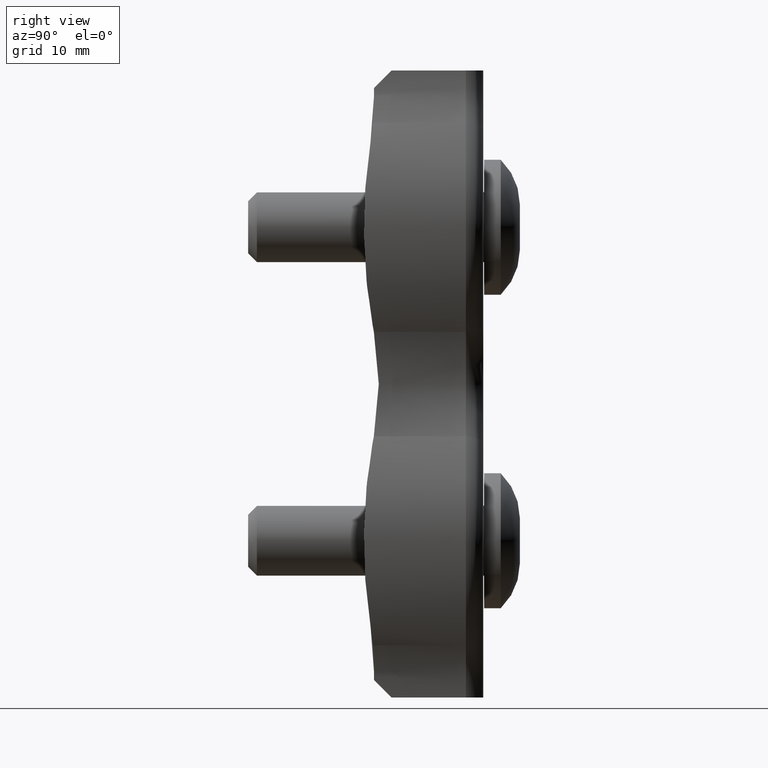
[diagram: clean part render]
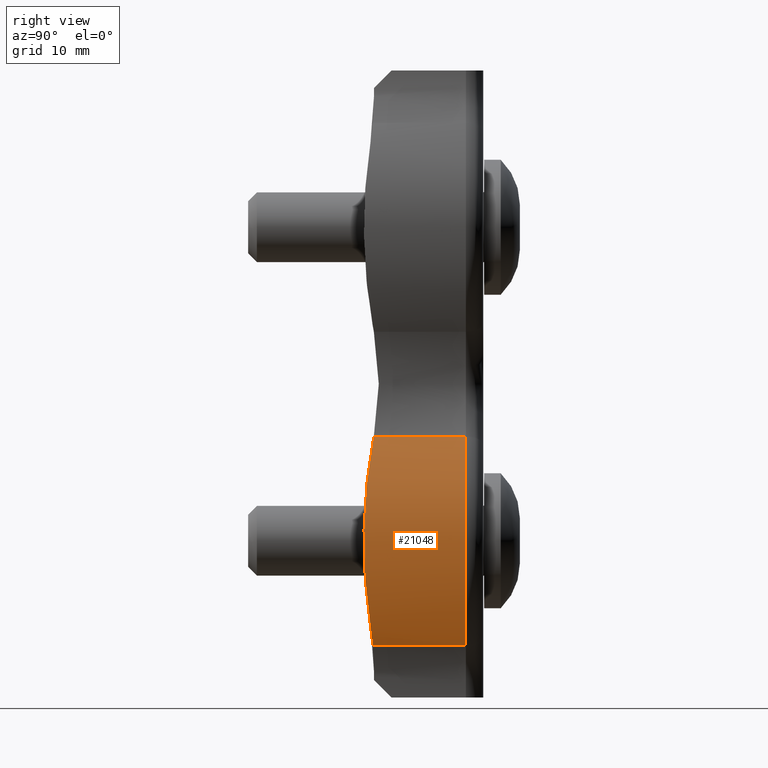
[diagram: same view with one face highlighted and labeled with its STEP entity id]
A machine part, right view. The second image highlights one B-rep face of the part: STEP entity #21048.
In plain terms, the highlighted cylindrical surface (partial cylindrical patch) has radius 24.5454 mm, axis along (-0, -1, -0).
Its self-contained STEP definition (entity closure, byte-faithful):
#43 = CARTESIAN_POINT ( 'NONE',  ( 13.50598114756661872, -11.34100658835783726, -9.361216069202184187 ) ) ;
#1255 = CYLINDRICAL_SURFACE ( 'NONE', #15350, 24.54539007092199299 ) ;
#1914 = CARTESIAN_POINT ( 'NONE',  ( 14.15908799199522150, -11.58259080339258951, -11.61299940750677351 ) ) ;
#1967 = CARTESIAN_POINT ( 'NONE',  ( 12.27404062461117284, -10.94523976736921611, -29.27310714158968352 ) ) ;
#2646 = B_SPLINE_CURVE_WITH_KNOTS ( 'NONE', 3,
 ( #5492, #18678, #1967, #20559 ),
 .UNSPECIFIED., .F., .F.,
 ( 4, 4 ),
 ( 0.000000000000000000, 0.002502672917256980930 ),
 .UNSPECIFIED. ) ;
#3406 = CARTESIAN_POINT ( 'NONE',  ( 11.86666666666667069, -10.88142794145035452, -30.00000000000000000 ) ) ;
#5367 = CARTESIAN_POINT ( 'NONE',  ( 14.87708504899997841, -11.85300865837837669, -20.49896438579180469 ) ) ;
#5440 = CARTESIAN_POINT ( 'NONE',  ( 14.27721699111886799, -11.62663041530372077, -12.06847819437594893 ) ) ;
#5492 = CARTESIAN_POINT ( 'NONE',  ( 12.97151138308429452, -11.15091792706875751, -27.77063573388577211 ) ) ;
#5593 = CARTESIAN_POINT ( 'NONE',  ( 14.48790285040423775, -11.70557042010451099, -12.98997110579954928 ) ) ;
#6092 = AXIS2_PLACEMENT_3D ( 'NONE', #20458, #7357, #20534 ) ;
#6393 = VERTEX_POINT ( 'NONE', #16811 ) ;
#6500 = EDGE_CURVE ( 'NONE', #6393, #21614, #11083, .T. ) ;
#6767 = ORIENTED_EDGE ( 'NONE', *, *, #6865, .F. ) ;
#6806 = VERTEX_POINT ( 'NONE', #24003 ) ;
#6865 = EDGE_CURVE ( 'NONE', #6393, #12440, #11930, .T. ) ;
#7327 = CARTESIAN_POINT ( 'NONE',  ( 13.72325818017522892, -11.41812883715961924, -26.03819897035393538 ) ) ;
#7357 = DIRECTION ( 'NONE',  ( -0.000000000000000000, -1.000000000000000000, -0.000000000000000000 ) ) ;
#7480 = CARTESIAN_POINT ( 'NONE',  ( 14.92066558783529118, -11.86965508711289274, -20.02756210937793924 ) ) ;
#8829 = ORIENTED_EDGE ( 'NONE', *, *, #9714, .T. ) ;
#9292 = CARTESIAN_POINT ( 'NONE',  ( 14.91901905699157815, -11.86901667021594342, -15.79724868947694461 ) ) ;
#9714 = EDGE_CURVE ( 'NONE', #18046, #6806, #12533, .T. ) ;
#10189 = VECTOR ( 'NONE', #22207, 1000.000000000000000 ) ;
#10771 = CARTESIAN_POINT ( 'NONE',  ( 11.86666666666666714, -0.2000000000000000944, -6.000000000000000888 ) ) ;
#10968 = CARTESIAN_POINT ( 'NONE',  ( 12.97151138308429452, -11.15091792706875751, -27.77063573388577211 ) ) ;
#11083 = CIRCLE ( 'NONE', #6092, 24.54539007092198943 ) ;
#11930 = LINE ( 'NONE', #22507, #10189 ) ;
#12171 = DIRECTION ( 'NONE',  ( 0.000000000000000000, 0.000000000000000000, -1.000000000000000000 ) ) ;
#12440 = VERTEX_POINT ( 'NONE', #3406 ) ;
#12533 = B_SPLINE_CURVE_WITH_KNOTS ( 'NONE', 3,
 ( #16612, #22360, #43, #1914, #5440, #5593, #20583, #18545, #9292, #24312, #13070, #7480, #5367, #20659, #22506, #18628, #7327, #10968 ),
 .UNSPECIFIED., .F., .F.,
 ( 4, 2, 2, 2, 2, 2, 2, 2, 4 ),
 ( 5.485677294651095664E-18, 0.005642848731476339356, 0.007053560914345425280, 0.008464273097214510336, 0.01128569746295268565, 0.01410712182869086097, 0.01551783401155995036, 0.01692854619442903802, 0.02257139492590539906 ),
 .UNSPECIFIED. ) ;
#13070 = CARTESIAN_POINT ( 'NONE',  ( 15.01044942466823606, -11.90397843871978623, -18.61463475726603178 ) ) ;
#14461 = CARTESIAN_POINT ( 'NONE',  ( 11.86666666666666714, 1.800000000000000044, -6.000000000000000888 ) ) ;
#14991 = EDGE_LOOP ( 'NONE', ( #18680, #8829, #20900, #6767, #21133 ) ) ;
#15267 = EDGE_CURVE ( 'NONE', #6806, #12440, #2646, .T. ) ;
#15331 = FACE_OUTER_BOUND ( 'NONE', #14991, .T. ) ;
#15350 = AXIS2_PLACEMENT_3D ( 'NONE', #23250, #21470, #12171 ) ;
#16461 = DIRECTION ( 'NONE',  ( -0.000000000000000000, -1.000000000000000000, -0.000000000000000000 ) ) ;
#16612 = CARTESIAN_POINT ( 'NONE',  ( 11.86666666666667425, -10.76666666666666750, -6.000000000000003553 ) ) ;
#16811 = CARTESIAN_POINT ( 'NONE',  ( 11.86666666666667069, -0.2000000000000000944, -30.00000000000000000 ) ) ;
#17999 = VECTOR ( 'NONE', #16461, 1000.000000000000000 ) ;
#18046 = VERTEX_POINT ( 'NONE', #20620 ) ;
#18545 = CARTESIAN_POINT ( 'NONE',  ( 14.81683817114475232, -11.82991648672370921, -14.86036107230304815 ) ) ;
#18628 = CARTESIAN_POINT ( 'NONE',  ( 14.26846408209508610, -11.62267255237101615, -24.24169583691672614 ) ) ;
#18678 = CARTESIAN_POINT ( 'NONE',  ( 12.64211924613701932, -11.03383439172007741, -28.52973580571054057 ) ) ;
#18680 = ORIENTED_EDGE ( 'NONE', *, *, #22449, .T. ) ;
#20458 = CARTESIAN_POINT ( 'NONE',  ( -9.545390070921987657, -0.2000000000000000944, -18.00000000000000000 ) ) ;
#20534 = DIRECTION ( 'NONE',  ( -9.187633654441004382E-16, 0.000000000000000000, 1.000000000000000000 ) ) ;
#20559 = CARTESIAN_POINT ( 'NONE',  ( 11.86666666666667069, -10.88142794145035452, -30.00000000000000000 ) ) ;
#20583 = CARTESIAN_POINT ( 'NONE',  ( 14.58068903123144722, -11.74055801704376378, -13.45760945804541109 ) ) ;
#20620 = CARTESIAN_POINT ( 'NONE',  ( 11.86666666666667425, -10.76666666666666750, -6.000000000000003553 ) ) ;
#20659 = CARTESIAN_POINT ( 'NONE',  ( 14.76202341812429353, -11.80922304104269038, -21.44263902510763486 ) ) ;
#20900 = ORIENTED_EDGE ( 'NONE', *, *, #15267, .T. ) ;
#21048 = ADVANCED_FACE ( 'NONE', ( #15331 ), #1255, .T. ) ;
#21133 = ORIENTED_EDGE ( 'NONE', *, *, #6500, .T. ) ;
#21470 = DIRECTION ( 'NONE',  ( -0.000000000000000000, -1.000000000000000000, -0.000000000000000000 ) ) ;
#21614 = VERTEX_POINT ( 'NONE', #10771 ) ;
#22207 = DIRECTION ( 'NONE',  ( -0.000000000000000000, -1.000000000000000000, -0.000000000000000000 ) ) ;
#22360 = CARTESIAN_POINT ( 'NONE',  ( 12.78621476729708739, -11.07938200449036259, -7.640784675303362583 ) ) ;
#22374 = LINE ( 'NONE', #14461, #17999 ) ;
#22449 = EDGE_CURVE ( 'NONE', #21614, #18046, #22374, .T. ) ;
#22506 = CARTESIAN_POINT ( 'NONE',  ( 14.69057887068638379, -11.78209891465975012, -21.91380548451408217 ) ) ;
#22507 = CARTESIAN_POINT ( 'NONE',  ( 11.86666666666667069, 1.800000000000000044, -30.00000000000000000 ) ) ;
#23250 = CARTESIAN_POINT ( 'NONE',  ( -9.545390070921987657, 1.800000000000000044, -18.00000000000000000 ) ) ;
#24003 = CARTESIAN_POINT ( 'NONE',  ( 12.97151138308429452, -11.15091792706875751, -27.77063573388577211 ) ) ;
#24312 = CARTESIAN_POINT ( 'NONE',  ( 15.01582737626284825, -11.90604710971644487, -17.67438546399920796 ) ) ;